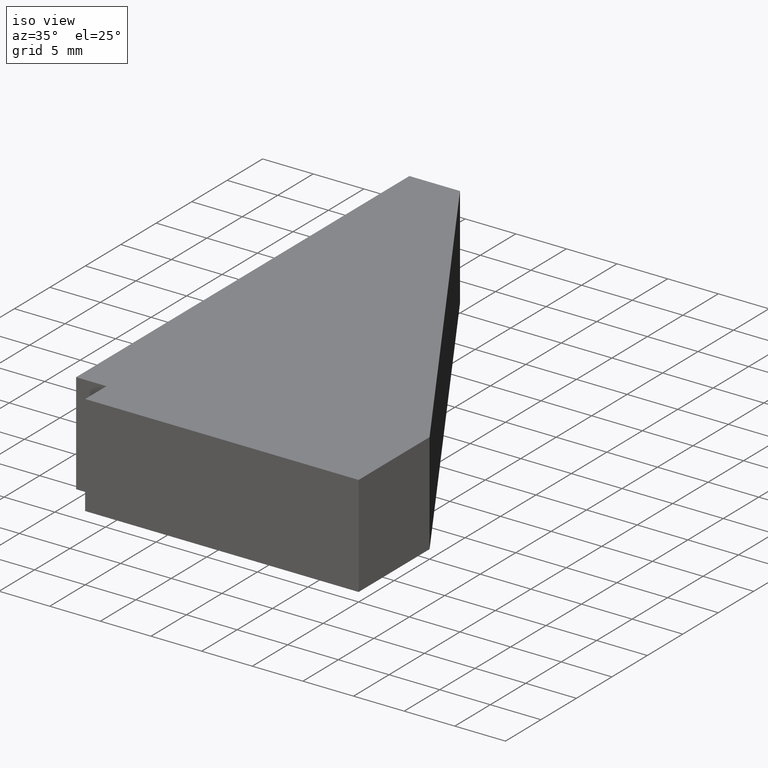
[diagram: clean part render]
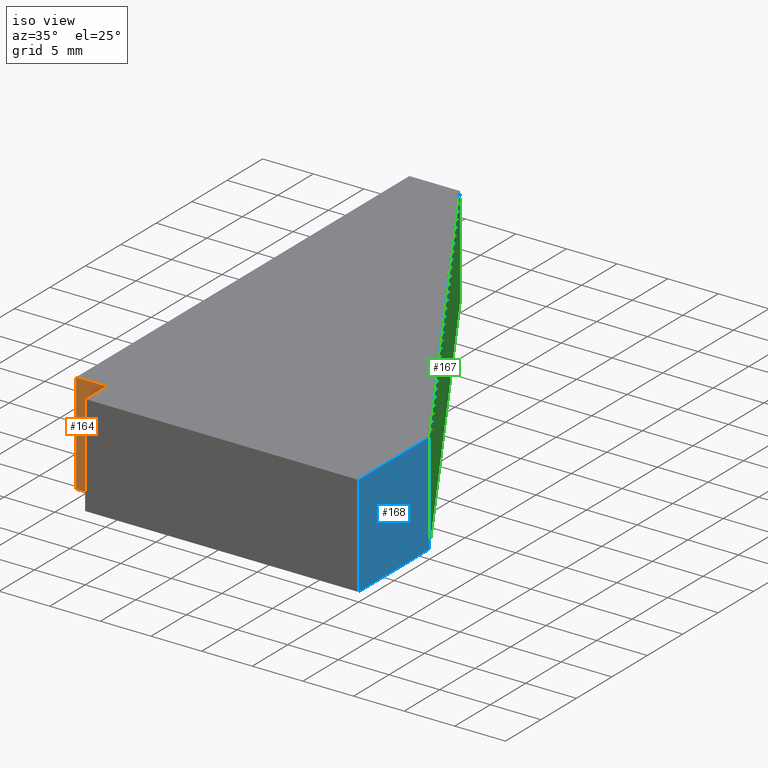
[diagram: same view with three faces highlighted in distinct colors, each labeled with its STEP entity id]
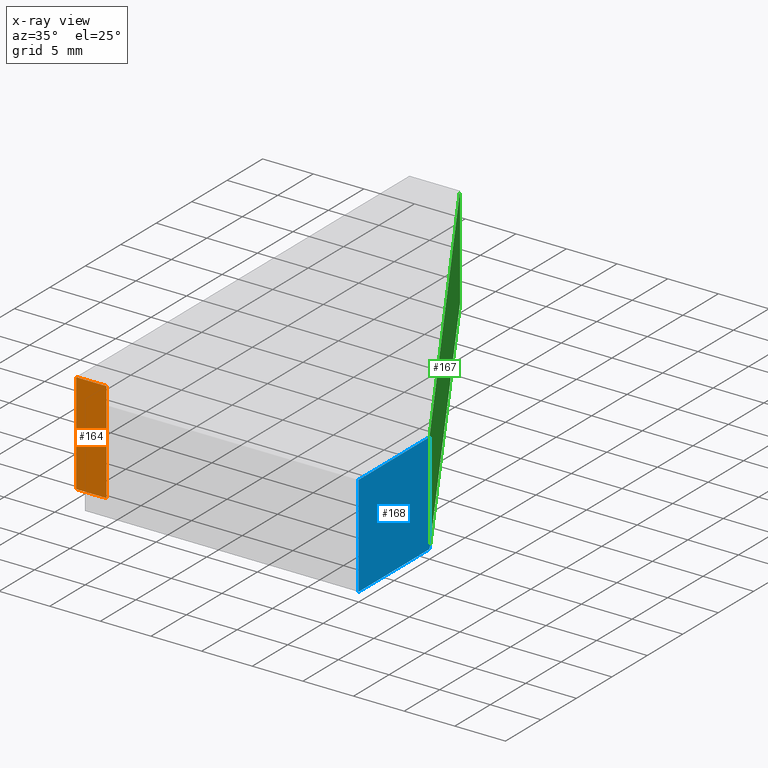
[diagram: x-ray of the same camera — body ghosted, the three highlighted faces saturated]
A machine part, iso view with three faces highlighted in distinct colors.
The next image is the same camera in x-ray (body ghosted, the three faces saturated) — at least one of them is partly hidden behind the body in this view.
Their STEP definitions:

[orange] entity #164 — the highlighted planar face has unit normal (-0, -1, 0).
#18=FACE_OUTER_BOUND('',#27,.T.);
#27=EDGE_LOOP('',(#125,#126,#127,#128));
#37=LINE('',#255,#58);
#44=LINE('',#268,#65);
#45=LINE('',#271,#66);
#46=LINE('',#272,#67);
#58=VECTOR('',#210,10.);
#65=VECTOR('',#221,10.);
#66=VECTOR('',#224,10.);
#67=VECTOR('',#225,10.);
#79=VERTEX_POINT('',#252);
#80=VERTEX_POINT('',#254);
#84=VERTEX_POINT('',#266);
#85=VERTEX_POINT('',#270);
#93=EDGE_CURVE('',#80,#79,#37,.T.);
#100=EDGE_CURVE('',#84,#79,#44,.T.);
#101=EDGE_CURVE('',#84,#85,#45,.T.);
#102=EDGE_CURVE('',#85,#80,#46,.T.);
#125=ORIENTED_EDGE('',*,*,#101,.T.);
#126=ORIENTED_EDGE('',*,*,#102,.T.);
#127=ORIENTED_EDGE('',*,*,#93,.T.);
#128=ORIENTED_EDGE('',*,*,#100,.F.);
#155=PLANE('',#196);
#164=ADVANCED_FACE('',(#18),#155,.T.);
#196=AXIS2_PLACEMENT_3D('',#269,#222,#223);
#210=DIRECTION('',(1.,-1.8503717077086E-16,0.));
#221=DIRECTION('',(0.,0.,-1.));
#222=DIRECTION('center_axis',(-1.8503717077086E-16,-1.,0.));
#223=DIRECTION('ref_axis',(0.,0.,-1.));
#224=DIRECTION('',(-1.,1.8503717077086E-16,0.));
#225=DIRECTION('',(0.,0.,-1.));
#252=CARTESIAN_POINT('',(-27.,3.,-5.));
#254=CARTESIAN_POINT('',(-30.,3.,-5.));
#255=CARTESIAN_POINT('',(-27.,3.,-5.));
#266=CARTESIAN_POINT('',(-27.,3.,5.));
#268=CARTESIAN_POINT('',(-27.,3.,0.));
#269=CARTESIAN_POINT('Origin',(-27.,3.,0.));
#270=CARTESIAN_POINT('',(-30.,3.,5.));
#271=CARTESIAN_POINT('',(-27.,3.,5.));
#272=CARTESIAN_POINT('',(-30.,3.,0.));

[blue] entity #168 — the highlighted planar face has unit normal (1, 0, 0).
#22=FACE_OUTER_BOUND('',#31,.T.);
#31=EDGE_LOOP('',(#141,#142,#143,#144));
#34=LINE('',#249,#55);
#42=LINE('',#264,#63);
#52=LINE('',#284,#73);
#53=LINE('',#286,#74);
#55=VECTOR('',#207,10.);
#63=VECTOR('',#217,10.);
#73=VECTOR('',#237,10.);
#74=VECTOR('',#240,10.);
#75=VERTEX_POINT('',#245);
#77=VERTEX_POINT('',#248);
#82=VERTEX_POINT('',#260);
#88=VERTEX_POINT('',#282);
#90=EDGE_CURVE('',#77,#75,#34,.T.);
#98=EDGE_CURVE('',#82,#77,#42,.T.);
#108=EDGE_CURVE('',#75,#88,#52,.T.);
#109=EDGE_CURVE('',#88,#82,#53,.T.);
#141=ORIENTED_EDGE('',*,*,#109,.T.);
#142=ORIENTED_EDGE('',*,*,#98,.T.);
#143=ORIENTED_EDGE('',*,*,#90,.T.);
#144=ORIENTED_EDGE('',*,*,#108,.T.);
#159=PLANE('',#200);
#168=ADVANCED_FACE('',(#22),#159,.T.);
#200=AXIS2_PLACEMENT_3D('',#285,#238,#239);
#207=DIRECTION('',(0.,1.,0.));
#217=DIRECTION('',(0.,0.,-1.));
#237=DIRECTION('',(0.,0.,1.));
#238=DIRECTION('center_axis',(1.,0.,0.));
#239=DIRECTION('ref_axis',(0.,0.,-1.));
#240=DIRECTION('',(0.,-1.,0.));
#245=CARTESIAN_POINT('',(0.,10.,-5.));
#248=CARTESIAN_POINT('',(0.,1.53537805366403E-15,-5.));
#249=CARTESIAN_POINT('',(0.,10.,-5.));
#260=CARTESIAN_POINT('',(0.,1.53537805366403E-15,5.));
#264=CARTESIAN_POINT('',(0.,1.53537805366403E-15,0.));
#282=CARTESIAN_POINT('',(0.,10.,5.));
#284=CARTESIAN_POINT('',(0.,10.,0.));
#285=CARTESIAN_POINT('Origin',(0.,10.,0.));
#286=CARTESIAN_POINT('',(0.,10.,5.));

[green] entity #167 — the highlighted planar face has unit normal (0.848, 0.53, 0).
#21=FACE_OUTER_BOUND('',#30,.T.);
#30=EDGE_LOOP('',(#137,#138,#139,#140));
#33=LINE('',#247,#54);
#50=LINE('',#280,#71);
#51=LINE('',#283,#72);
#52=LINE('',#284,#73);
#54=VECTOR('',#206,10.);
#71=VECTOR('',#233,10.);
#72=VECTOR('',#236,10.);
#73=VECTOR('',#237,10.);
#75=VERTEX_POINT('',#245);
#76=VERTEX_POINT('',#246);
#87=VERTEX_POINT('',#278);
#88=VERTEX_POINT('',#282);
#89=EDGE_CURVE('',#75,#76,#33,.T.);
#106=EDGE_CURVE('',#87,#76,#50,.T.);
#107=EDGE_CURVE('',#87,#88,#51,.T.);
#108=EDGE_CURVE('',#75,#88,#52,.T.);
#137=ORIENTED_EDGE('',*,*,#107,.T.);
#138=ORIENTED_EDGE('',*,*,#108,.F.);
#139=ORIENTED_EDGE('',*,*,#89,.T.);
#140=ORIENTED_EDGE('',*,*,#106,.F.);
#158=PLANE('',#199);
#167=ADVANCED_FACE('',(#21),#158,.T.);
#199=AXIS2_PLACEMENT_3D('',#281,#234,#235);
#206=DIRECTION('',(-0.52999894000318,0.847998304005088,0.));
#233=DIRECTION('',(0.,0.,-1.));
#234=DIRECTION('center_axis',(0.847998304005088,0.52999894000318,0.));
#235=DIRECTION('ref_axis',(0.,0.,-1.));
#236=DIRECTION('',(0.52999894000318,-0.847998304005088,0.));
#237=DIRECTION('',(0.,0.,1.));
#245=CARTESIAN_POINT('',(0.,10.,-5.));
#246=CARTESIAN_POINT('',(-25.,50.,-5.));
#247=CARTESIAN_POINT('',(-25.,50.,-5.));
#278=CARTESIAN_POINT('',(-25.,50.,5.));
#280=CARTESIAN_POINT('',(-25.,50.,0.));
#281=CARTESIAN_POINT('Origin',(-25.,50.,0.));
#282=CARTESIAN_POINT('',(0.,10.,5.));
#283=CARTESIAN_POINT('',(-25.,50.,5.));
#284=CARTESIAN_POINT('',(0.,10.,0.));